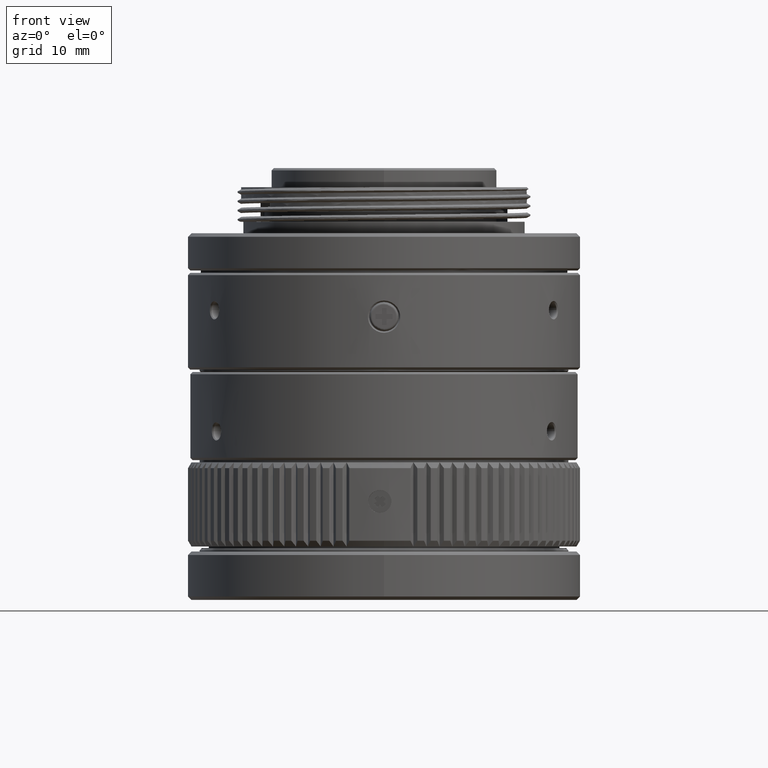
[diagram: clean part render]
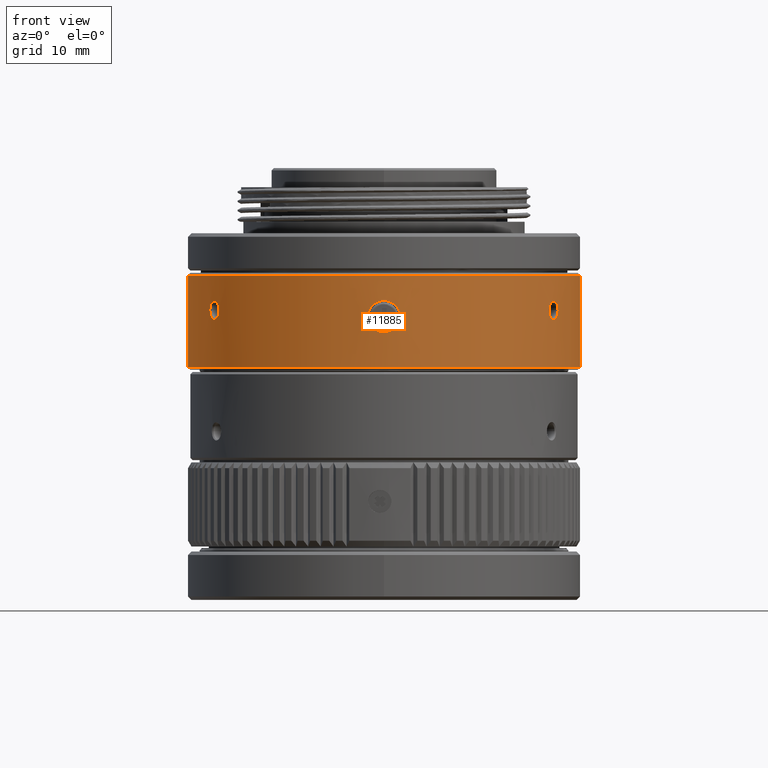
[diagram: same view with one face highlighted and labeled with its STEP entity id]
A machine part, front view. The second image highlights one B-rep face of the part: STEP entity #11885.
In plain terms, the highlighted cylindrical surface (partial cylindrical patch) has radius 17 mm, axis along (0, 0, -1).
Its self-contained STEP definition (entity closure, byte-faithful):
#880 = CARTESIAN_POINT ( 'NONE',  ( 14.51621374808549092, -8.848107386211344405, 10.96505596530195881 ) ) ;
#1080 = VERTEX_POINT ( 'NONE', #9643 ) ;
#1105 = CARTESIAN_POINT ( 'NONE',  ( 14.82840658759275243, -8.316446392439216240, 10.86434817954391185 ) ) ;
#1383 = CARTESIAN_POINT ( 'NONE',  ( 1.399178897064686122, -16.94233239355555654, 10.92038412918360812 ) ) ;
#1978 = CARTESIAN_POINT ( 'NONE',  ( 15.03386306122994398, -7.936537118587737361, 11.17265909807902169 ) ) ;
#2039 = CARTESIAN_POINT ( 'NONE',  ( -2.985602292109726980E-08, -16.99994755826685733, 9.703853647849248532 ) ) ;
#2588 = CARTESIAN_POINT ( 'NONE',  ( -14.35144953760494957, -9.113619036781518190, 12.08340685769254641 ) ) ;
#3199 = CARTESIAN_POINT ( 'NONE',  ( -0.7085538520041599897, -16.98608169885476826, 12.32766706338686902 ) ) ;
#4289 = CARTESIAN_POINT ( 'NONE',  ( 0.000000000000000000, 0.000000000000000000, 14.70393226270520337 ) ) ;
#4891 = EDGE_LOOP ( 'NONE', ( #22074, #52905, #57554, #24722 ) ) ;
#5215 = EDGE_CURVE ( 'NONE', #21514, #22298, #41972, .T. ) ;
#5390 = DIRECTION ( 'NONE',  ( 0.000000000000000000, 0.000000000000000000, -1.000000000000000000 ) ) ;
#5783 = CARTESIAN_POINT ( 'NONE',  ( 1.265543007806325893, -16.95286588059241240, 10.48294825757988846 ) ) ;
#6085 = CARTESIAN_POINT ( 'NONE',  ( 15.10826764495986829, -7.793603067350082014, 11.76943596855901575 ) ) ;
#6121 = CARTESIAN_POINT ( 'NONE',  ( -14.35837934221860479, -9.101570176239681231, 11.26110688693533035 ) ) ;
#6378 = CARTESIAN_POINT ( 'NONE',  ( 14.92079264591444243, -8.147356179501395346, 12.36354056009664504 ) ) ;
#6672 = CARTESIAN_POINT ( 'NONE',  ( 15.10832020023952893, -7.793501185615105520, 11.56014699603338514 ) ) ;
#7099 = CARTESIAN_POINT ( 'NONE',  ( -15.09874136544532419, -7.812147376076299388, 11.87354466904351646 ) ) ;
#7538 = AXIS2_PLACEMENT_3D ( 'NONE', #23871, #17126, #12153 ) ;
#7717 = VERTEX_POINT ( 'NONE', #18304 ) ;
#8227 = AXIS2_PLACEMENT_3D ( 'NONE', #4289, #49343, #40026 ) ;
#8551 = CARTESIAN_POINT ( 'NONE',  ( 0.000000000000000000, 0.000000000000000000, 14.70393226270520337 ) ) ;
#9643 = CARTESIAN_POINT ( 'NONE',  ( -14.72238429965113227, -8.499972608528263862, 10.86418566821859955 ) ) ;
#9817 = B_SPLINE_CURVE_WITH_KNOTS ( 'NONE', 3,
 ( #33338, #24843, #42714, #10797, #50876, #2588, #29521, #20451, #47377, #6121, #55280, #25147, #16365, #34222 ),
 .UNSPECIFIED., .F., .F.,
 ( 4, 2, 2, 2, 2, 2, 4 ),
 ( 0.000000000000000000, 0.0003135642817094142680, 0.0006271285634188285361, 0.001254257126837655121, 0.001567821408547065811, 0.001881385690256476284, 0.002508514253675294629 ),
 .UNSPECIFIED. ) ;
#9957 = LINE ( 'NONE', #13786, #10595 ) ;
#10035 = EDGE_CURVE ( 'NONE', #47037, #7717, #9957, .T. ) ;
#10162 = CARTESIAN_POINT ( 'NONE',  ( 1.408347226719864009, -16.94156303574113309, 11.01340453649803841 ) ) ;
#10463 = CARTESIAN_POINT ( 'NONE',  ( -2.985602292109726980E-08, -16.99994755826685733, 9.703853647849248532 ) ) ;
#10595 = VECTOR ( 'NONE', #40733, 1000.000000000000000 ) ;
#10797 = CARTESIAN_POINT ( 'NONE',  ( -14.51615069377965561, -8.848211691146303792, 12.36374247471212051 ) ) ;
#11041 = CARTESIAN_POINT ( 'NONE',  ( 0.1856004276468831982, -16.99999999886772173, 12.50402684633510653 ) ) ;
#11344 = CARTESIAN_POINT ( 'NONE',  ( 14.82656189220892529, -8.317603522321334708, 12.44375894365846413 ) ) ;
#11404 = CARTESIAN_POINT ( 'NONE',  ( -1.060707294260197830, -16.96700442510302054, 12.02936441035268977 ) ) ;
#11827 = ORIENTED_EDGE ( 'NONE', *, *, #39471, .T. ) ;
#11885 = ADVANCED_FACE ( 'NONE', ( #17629, #52170, #56847, #35210 ), #29657, .T. ) ;
#12074 = CARTESIAN_POINT ( 'NONE',  ( -14.92775995649002141, -8.135390214566076139, 12.37953695532055320 ) ) ;
#12153 = DIRECTION ( 'NONE',  ( -1.000000000000000000, -1.687538997430237941E-14, 0.000000000000000000 ) ) ;
#12562 = CARTESIAN_POINT ( 'NONE',  ( -1.229664216139479294, -16.95561670483952099, 10.39748983238265900 ) ) ;
#13596 = CARTESIAN_POINT ( 'NONE',  ( -16.99999999999599609, 0.000000000000000000, 14.70393226270520337 ) ) ;
#13617 = ORIENTED_EDGE ( 'NONE', *, *, #5215, .T. ) ;
#13786 = CARTESIAN_POINT ( 'NONE',  ( 16.99999999999599609, 2.081899558550010003E-15, 14.70393226270520337 ) ) ;
#14494 = VERTEX_POINT ( 'NONE', #40425 ) ;
#14570 = CARTESIAN_POINT ( 'NONE',  ( 14.72246460987873462, -8.500018860256878028, 10.86435854122186662 ) ) ;
#14637 = CARTESIAN_POINT ( 'NONE',  ( 14.31514168199074533, -9.169424653556243143, 11.45354860136587938 ) ) ;
#14725 = EDGE_CURVE ( 'NONE', #34709, #14494, #47327, .T. ) ;
#15505 = ORIENTED_EDGE ( 'NONE', *, *, #43349, .T. ) ;
#15744 = CARTESIAN_POINT ( 'NONE',  ( 14.72246457056893654, -8.500018928343235913, 12.46423798417808015 ) ) ;
#15809 = CARTESIAN_POINT ( 'NONE',  ( -1.408132967194616114, -16.94158084616390525, 10.91972049039001291 ) ) ;
#16101 = CARTESIAN_POINT ( 'NONE',  ( -1.265543007632765837, -16.95286588060546151, 11.72491626817959798 ) ) ;
#16365 = CARTESIAN_POINT ( 'NONE',  ( -14.61642271457223075, -8.683613228852138377, 10.86426143095794750 ) ) ;
#16967 = CARTESIAN_POINT ( 'NONE',  ( -1.370839372222483199, -16.94478714358641014, 10.73487241710262730 ) ) ;
#17126 = DIRECTION ( 'NONE',  ( -0.000000000000000000, -0.000000000000000000, 1.000000000000000000 ) ) ;
#17629 = FACE_OUTER_BOUND ( 'NONE', #4891, .T. ) ;
#18304 = CARTESIAN_POINT ( 'NONE',  ( 16.99999999999594635, -2.823240723882835743E-13, 6.703912849951186637 ) ) ;
#18448 = CARTESIAN_POINT ( 'NONE',  ( 14.50949683089594267, -8.859861264645553902, 12.37975796256185390 ) ) ;
#18736 = CARTESIAN_POINT ( 'NONE',  ( 14.30353011128735652, -9.187438509108256213, 11.76844952936577648 ) ) ;
#19028 = CARTESIAN_POINT ( 'NONE',  ( 14.72246460987873462, -8.500018860256878028, 10.86435854122186662 ) ) ;
#19242 = CARTESIAN_POINT ( 'NONE',  ( 0.3676499220204487717, -16.99687777682275325, 12.46773801614311417 ) ) ;
#19911 = CARTESIAN_POINT ( 'NONE',  ( -0.1856004264069983645, -16.99999999888250102, 9.703837678886163332 ) ) ;
#20451 = CARTESIAN_POINT ( 'NONE',  ( -14.30352685739824992, -9.187443574997113060, 11.56031056816237879 ) ) ;
#20478 = CARTESIAN_POINT ( 'NONE',  ( -1.363048492474576934, -16.94527743434368361, 11.46763670426897619 ) ) ;
#21514 = VERTEX_POINT ( 'NONE', #32844 ) ;
#21641 = B_SPLINE_CURVE_WITH_KNOTS ( 'NONE', 3,
 ( #19028, #23124, #41011, #880, #28109, #23412, #54716, #14637, #45958, #18736, #23997, #31923, #36604, #18448, #36888, #32493 ),
 .UNSPECIFIED., .F., .F.,
 ( 4, 2, 2, 2, 2, 2, 2, 4 ),
 ( 0.000000000000000000, 0.0003135034093271779707, 0.0006270068186543559415, 0.0009405102279815339122, 0.001254013637308711883, 0.001567517046635889854, 0.001881020455963067824, 0.002508027274617428103 ),
 .UNSPECIFIED. ) ;
#22015 = ORIENTED_EDGE ( 'NONE', *, *, #29289, .T. ) ;
#22074 = ORIENTED_EDGE ( 'NONE', *, *, #10035, .F. ) ;
#22298 = VERTEX_POINT ( 'NONE', #39923 ) ;
#23124 = CARTESIAN_POINT ( 'NONE',  ( 14.66942719431654574, -8.591806782053842184, 10.86430564190312076 ) ) ;
#23165 = CIRCLE ( 'NONE', #8227, 16.99999999999599609 ) ;
#23412 = CARTESIAN_POINT ( 'NONE',  ( 14.39078591957969344, -9.050459120216345354, 11.17153167602800146 ) ) ;
#23630 = CARTESIAN_POINT ( 'NONE',  ( 1.221299206010745264, -16.95615088402611903, 10.40087105398008305 ) ) ;
#23871 = CARTESIAN_POINT ( 'NONE',  ( 0.000000000000000000, 0.000000000000000000, 6.703912849951186637 ) ) ;
#23920 = CARTESIAN_POINT ( 'NONE',  ( 1.229664216358135276, -16.95561670482331351, 11.81037469261317518 ) ) ;
#23997 = CARTESIAN_POINT ( 'NONE',  ( 14.31490395662457260, -9.169796332985969300, 11.87368237571771168 ) ) ;
#24070 = AXIS2_PLACEMENT_3D ( 'NONE', #8551, #25283, #26415 ) ;
#24222 = CARTESIAN_POINT ( 'NONE',  ( 0.8634299149369871751, -16.97857017786259348, 9.982603446378567114 ) ) ;
#24722 = ORIENTED_EDGE ( 'NONE', *, *, #37507, .T. ) ;
#24843 = CARTESIAN_POINT ( 'NONE',  ( -14.66941825213009665, -8.591822268124044371, 12.46425342354289434 ) ) ;
#24961 = CARTESIAN_POINT ( 'NONE',  ( -14.82844322940361614, -8.316382927843104511, 12.46434757356022338 ) ) ;
#25147 = CARTESIAN_POINT ( 'NONE',  ( -14.50930990755399108, -8.860163784658995567, 10.94909311645520766 ) ) ;
#25175 = CARTESIAN_POINT ( 'NONE',  ( -1.221299205793028086, -16.95615088404197834, 11.80699347180068415 ) ) ;
#25267 = CARTESIAN_POINT ( 'NONE',  ( -14.82654938893746355, -8.317626512384761028, 10.88500640138490816 ) ) ;
#25283 = DIRECTION ( 'NONE',  ( 0.000000000000000000, 0.000000000000000000, -1.000000000000000000 ) ) ;
#25471 = CARTESIAN_POINT ( 'NONE',  ( -0.8567303808642381391, -16.97857096225743234, 9.989038464325149747 ) ) ;
#26415 = DIRECTION ( 'NONE',  ( -1.000000000000000000, 0.000000000000000000, 0.000000000000000000 ) ) ;
#26517 = VERTEX_POINT ( 'NONE', #44347 ) ;
#26876 = EDGE_LOOP ( 'NONE', ( #22015, #13617 ) ) ;
#28031 = CARTESIAN_POINT ( 'NONE',  ( 0.7085538528130058689, -16.98608169881983088, 9.880197462489448412 ) ) ;
#28109 = CARTESIAN_POINT ( 'NONE',  ( 14.46941112449167122, -8.924218250374483574, 11.02408992962756074 ) ) ;
#28333 = CARTESIAN_POINT ( 'NONE',  ( 14.92761334463509471, -8.135662219366009751, 10.94883856283862933 ) ) ;
#28612 = CARTESIAN_POINT ( 'NONE',  ( 1.124338380312182029, -16.96327931996798455, 11.96641127105179514 ) ) ;
#28903 = CARTESIAN_POINT ( 'NONE',  ( 3.121015076212082686E-08, -16.99994755826754300, 12.50401087755376217 ) ) ;
#29289 = EDGE_CURVE ( 'NONE', #22298, #21514, #21641, .T. ) ;
#29521 = CARTESIAN_POINT ( 'NONE',  ( -14.30363198767360089, -9.187279900921877740, 11.87415756025411007 ) ) ;
#29657 = CYLINDRICAL_SURFACE ( 'NONE', #24070, 16.99999999999599609 ) ;
#29743 = ORIENTED_EDGE ( 'NONE', *, *, #14725, .T. ) ;
#30137 = CARTESIAN_POINT ( 'NONE',  ( -1.124338379966471901, -16.96327931999196537, 10.24145325388198557 ) ) ;
#30420 = CARTESIAN_POINT ( 'NONE',  ( 3.121015076212082686E-08, -16.99994755826754300, 12.50401087755376217 ) ) ;
#30894 = CIRCLE ( 'NONE', #7538, 16.99999999999599609 ) ;
#30958 = EDGE_CURVE ( 'NONE', #33263, #42647, #50144, .T. ) ;
#31022 = CARTESIAN_POINT ( 'NONE',  ( 3.121015076212082686E-08, -16.99994755826754300, 12.50401087755376217 ) ) ;
#31923 = CARTESIAN_POINT ( 'NONE',  ( 14.35843029993414710, -9.101489954823977158, 12.06769954441739223 ) ) ;
#32493 = CARTESIAN_POINT ( 'NONE',  ( 14.72246457056893654, -8.500018928343235913, 12.46423798417808015 ) ) ;
#32844 = CARTESIAN_POINT ( 'NONE',  ( 14.72246457056893654, -8.500018928343235913, 12.46423798417808015 ) ) ;
#33263 = VERTEX_POINT ( 'NONE', #34917 ) ;
#33295 = CARTESIAN_POINT ( 'NONE',  ( 0.6230535837865762705, -16.98879216978009765, 12.36279840846149725 ) ) ;
#33338 = CARTESIAN_POINT ( 'NONE',  ( -14.72239618243831138, -8.499979418937583020, 12.46441230724838789 ) ) ;
#33364 = CARTESIAN_POINT ( 'NONE',  ( -0.6230535829236981682, -16.98879216981215023, 9.845066116511969057 ) ) ;
#33590 = CARTESIAN_POINT ( 'NONE',  ( 0.7038052556084725131, -16.98559734092601303, 12.31994954583660906 ) ) ;
#33958 = CARTESIAN_POINT ( 'NONE',  ( -0.3680192963590813160, -16.99686976589707399, 12.46756987799630956 ) ) ;
#34222 = CARTESIAN_POINT ( 'NONE',  ( -14.72238429965113227, -8.499972608528263862, 10.86418566821859955 ) ) ;
#34334 = CARTESIAN_POINT ( 'NONE',  ( -14.77544311285734935, -8.408181824810549543, 10.86432246356522313 ) ) ;
#34442 = ORIENTED_EDGE ( 'NONE', *, *, #49430, .T. ) ;
#34539 = CARTESIAN_POINT ( 'NONE',  ( -0.1855439407897616355, -17.00000000071350215, 12.50419449762411794 ) ) ;
#34709 = VERTEX_POINT ( 'NONE', #31022 ) ;
#34917 = CARTESIAN_POINT ( 'NONE',  ( -17.00000074961971208, 4.033187019905959687E-14, 14.70393226270520337 ) ) ;
#35191 = CARTESIAN_POINT ( 'NONE',  ( -15.10823292377818916, -7.793670376530664079, 11.45441692918948107 ) ) ;
#35210 = FACE_BOUND ( 'NONE', #41484, .T. ) ;
#36604 = CARTESIAN_POINT ( 'NONE',  ( 14.39017429338948162, -9.051438768748694130, 12.15593742732288796 ) ) ;
#36888 = CARTESIAN_POINT ( 'NONE',  ( 14.61645713886018960, -8.683553606280236536, 12.46424834586022001 ) ) ;
#37108 = CARTESIAN_POINT ( 'NONE',  ( 0.3680192974100546799, -16.99686976587312159, 9.740294647692813612 ) ) ;
#37119 = CARTESIAN_POINT ( 'NONE',  ( 15.06133666313324504, -7.884020420799740414, 11.26089698098278014 ) ) ;
#37507 = EDGE_CURVE ( 'NONE', #42647, #7717, #30894, .T. ) ;
#37708 = CARTESIAN_POINT ( 'NONE',  ( 1.363048492525778421, -16.94527743433952338, 10.74022782133256193 ) ) ;
#37713 = CARTESIAN_POINT ( 'NONE',  ( 15.06124903568369255, -7.884187170395614785, 12.06787382558699839 ) ) ;
#37779 = CARTESIAN_POINT ( 'NONE',  ( -0.3676499209321580364, -16.99687777684781409, 9.740126508955258444 ) ) ;
#38365 = CARTESIAN_POINT ( 'NONE',  ( -1.408347226720656709, -16.94156303574107270, 11.19445998895066197 ) ) ;
#38742 = CARTESIAN_POINT ( 'NONE',  ( -14.72238429965113227, -8.499972608528263862, 10.86418566821859955 ) ) ;
#38935 = CARTESIAN_POINT ( 'NONE',  ( -1.399178897052616000, -16.94233239355659393, 11.28748039633061495 ) ) ;
#39313 = CARTESIAN_POINT ( 'NONE',  ( -15.06137972286858151, -7.883937993776261699, 12.06749773970967254 ) ) ;
#39471 = EDGE_CURVE ( 'NONE', #14494, #34709, #48706, .T. ) ;
#39923 = CARTESIAN_POINT ( 'NONE',  ( 14.72246460987873462, -8.500018860256878028, 10.86435854122186662 ) ) ;
#40026 = DIRECTION ( 'NONE',  ( -1.000000000000000000, 0.000000000000000000, 0.000000000000000000 ) ) ;
#40425 = CARTESIAN_POINT ( 'NONE',  ( -2.985602292109726980E-08, -16.99994755826685733, 9.703853647849248532 ) ) ;
#40733 = DIRECTION ( 'NONE',  ( 0.000000000000000000, 0.000000000000000000, -1.000000000000000000 ) ) ;
#41011 = CARTESIAN_POINT ( 'NONE',  ( 14.61653689504254672, -8.681377488273046339, 10.88483758174238147 ) ) ;
#41235 = CARTESIAN_POINT ( 'NONE',  ( 14.96330527598627391, -8.068768486424794162, 12.30450659576841055 ) ) ;
#41484 = EDGE_LOOP ( 'NONE', ( #15505, #34442 ) ) ;
#41514 = CARTESIAN_POINT ( 'NONE',  ( 1.408132967196210839, -16.94158084616377380, 11.28814403487872298 ) ) ;
#41805 = CARTESIAN_POINT ( 'NONE',  ( 1.119081460151147400, -16.96320374333835090, 10.24912414329170396 ) ) ;
#41972 = B_SPLINE_CURVE_WITH_KNOTS ( 'NONE', 3,
 ( #15744, #51413, #11344, #6378, #41235, #45593, #37713, #46771, #6085, #6672, #55532, #37119, #1978, #28333, #1105, #14570 ),
 .UNSPECIFIED., .F., .F.,
 ( 4, 2, 2, 2, 2, 2, 2, 4 ),
 ( 0.000000000000000000, 0.0003135034093275342396, 0.0006270068186550684791, 0.0009405102279826027187, 0.001254013637310136958, 0.001567517046637671198, 0.001881020455965205437, 0.002508027274620277386 ),
 .UNSPECIFIED. ) ;
#42647 = VERTEX_POINT ( 'NONE', #51720 ) ;
#42714 = CARTESIAN_POINT ( 'NONE',  ( -14.61655477457809660, -8.681348260357724556, 12.44356667937398697 ) ) ;
#43031 = CARTESIAN_POINT ( 'NONE',  ( -0.8634299142782146941, -16.97857017789746337, 12.22526107955096286 ) ) ;
#43349 = EDGE_CURVE ( 'NONE', #1080, #26517, #44096, .T. ) ;
#43573 = VECTOR ( 'NONE', #5390, 1000.000000000000000 ) ;
#44096 = B_SPLINE_CURVE_WITH_KNOTS ( 'NONE', 3,
 ( #38742, #34334, #25267, #48341, #47784, #52152, #35191, #53019, #7099, #39313, #48063, #12074, #24961, #56261 ),
 .UNSPECIFIED., .F., .F.,
 ( 4, 2, 2, 2, 2, 2, 4 ),
 ( 3.878959614448864246E-18, 0.0003135517002349700179, 0.0006271034004699361326, 0.001254206800939871615, 0.001567758501174841904, 0.001881310201409812193, 0.002508413601879754939 ),
 .UNSPECIFIED. ) ;
#44347 = CARTESIAN_POINT ( 'NONE',  ( -14.72239618243831138, -8.499979418937583020, 12.46441230724838789 ) ) ;
#45593 = CARTESIAN_POINT ( 'NONE',  ( 15.03332047380918368, -7.937556626672347626, 12.15706484936951526 ) ) ;
#45882 = CARTESIAN_POINT ( 'NONE',  ( 1.370839372271890344, -16.94478714358206872, 11.47299210806115966 ) ) ;
#45958 = CARTESIAN_POINT ( 'NONE',  ( 14.30359206581768028, -9.187342054034285610, 11.55916055684032706 ) ) ;
#46468 = CARTESIAN_POINT ( 'NONE',  ( 1.060707294657155408, -16.96700442507786732, 10.17850011550517308 ) ) ;
#46771 = CARTESIAN_POINT ( 'NONE',  ( 15.09852552906248668, -7.812564028599202182, 11.87504792403307974 ) ) ;
#47010 = EDGE_CURVE ( 'NONE', #47037, #33263, #23165, .T. ) ;
#47037 = VERTEX_POINT ( 'NONE', #57832 ) ;
#47327 = B_SPLINE_CURVE_WITH_KNOTS ( 'NONE', 3,
 ( #28903, #11041, #19242, #33295, #33590, #51407, #50537, #28612, #23920, #45882, #41514, #10162, #1383, #37708, #51113, #5783, #23630, #41805, #46468, #24222, #28031, #37108, #54937, #10463 ),
 .UNSPECIFIED., .F., .F.,
 ( 4, 2, 2, 2, 2, 2, 2, 2, 2, 2, 2, 4 ),
 ( 0.000000000000000000, 0.0005488739881765476031, 0.0008233109822648223804, 0.001097747976353097158, 0.001646621964529642809, 0.002195495952706188244, 0.002469932946794459010, 0.002744369940882729342, 0.003018806934970999674, 0.003293243929059270006, 0.003842117917235813706, 0.004390991905412357406 ),
 .UNSPECIFIED. ) ;
#47377 = CARTESIAN_POINT ( 'NONE',  ( -14.31489349660145471, -9.169812494758167176, 11.45502846819334586 ) ) ;
#47784 = CARTESIAN_POINT ( 'NONE',  ( -14.96324874995370102, -8.068873758118964901, 11.02403018668273660 ) ) ;
#48063 = CARTESIAN_POINT ( 'NONE',  ( -15.03389372469722041, -7.936478267460255864, 12.15577407500512308 ) ) ;
#48341 = CARTESIAN_POINT ( 'NONE',  ( -14.92083794160301657, -8.147273943016008602, 10.96487211849598431 ) ) ;
#48706 = B_SPLINE_CURVE_WITH_KNOTS ( 'NONE', 3,
 ( #2039, #19911, #37779, #33364, #51185, #25471, #51474, #30137, #12562, #16967, #15809, #38365, #38935, #20478, #56174, #16101, #25175, #52659, #11404, #43031, #3199, #33958, #34539, #30420 ),
 .UNSPECIFIED., .F., .F.,
 ( 4, 2, 2, 2, 2, 2, 2, 2, 2, 2, 2, 4 ),
 ( 0.000000000000000000, 0.0005488739885142061067, 0.0008233109827713078590, 0.001097747977028409611, 0.001646621965542613766, 0.002195495954056817921, 0.002469932948313920216, 0.002744369942571022077, 0.003018806936828123937, 0.003293243931085225798, 0.003842117919599427351, 0.004390991908113628037 ),
 .UNSPECIFIED. ) ;
#49343 = DIRECTION ( 'NONE',  ( 0.000000000000000000, 0.000000000000000000, -1.000000000000000000 ) ) ;
#49430 = EDGE_CURVE ( 'NONE', #26517, #1080, #9817, .T. ) ;
#50144 = LINE ( 'NONE', #13596, #43573 ) ;
#50537 = CARTESIAN_POINT ( 'NONE',  ( 0.9292000049452953103, -16.97471156959321803, 12.15982168265451691 ) ) ;
#50876 = CARTESIAN_POINT ( 'NONE',  ( -14.46948533177217300, -8.924098451834220569, 12.30458056194679628 ) ) ;
#51113 = CARTESIAN_POINT ( 'NONE',  ( 1.336346603575817138, -16.94743161735940262, 10.65273423557278143 ) ) ;
#51185 = CARTESIAN_POINT ( 'NONE',  ( -0.7038052548223124871, -16.98559734095894314, 9.887914979110339786 ) ) ;
#51407 = CARTESIAN_POINT ( 'NONE',  ( 0.8567303814919740024, -16.97857096222540108, 12.21882606059495657 ) ) ;
#51413 = CARTESIAN_POINT ( 'NONE',  ( 14.77543653482475605, -8.408193218216734266, 12.46429088349846559 ) ) ;
#51474 = CARTESIAN_POINT ( 'NONE',  ( -0.9292000043933427156, -16.97471156962371452, 10.04804284226162281 ) ) ;
#51720 = CARTESIAN_POINT ( 'NONE',  ( -16.99999999999604938, -2.802421728297335564E-13, 6.703912849951186637 ) ) ;
#52152 = CARTESIAN_POINT ( 'NONE',  ( -15.06834079265756543, -7.871928179712293527, 11.24516517881871991 ) ) ;
#52170 = FACE_BOUND ( 'NONE', #57161, .T. ) ;
#52659 = CARTESIAN_POINT ( 'NONE',  ( -1.119081459822252933, -16.96320374336022851, 11.95874038253933058 ) ) ;
#52905 = ORIENTED_EDGE ( 'NONE', *, *, #47010, .T. ) ;
#53019 = CARTESIAN_POINT ( 'NONE',  ( -15.10832332730383243, -7.793495123616331455, 11.76828243176772482 ) ) ;
#54716 = CARTESIAN_POINT ( 'NONE',  ( 14.35853089559578244, -9.101330692428179603, 11.26072269981105656 ) ) ;
#54937 = CARTESIAN_POINT ( 'NONE',  ( 0.1855439420311120191, -17.00000000069872286, 9.703670027958548161 ) ) ;
#55280 = CARTESIAN_POINT ( 'NONE',  ( -14.39015354705040828, -9.051470872919887611, 11.17280735759176302 ) ) ;
#55532 = CARTESIAN_POINT ( 'NONE',  ( 15.09872855020830507, -7.812172312676765706, 11.45491414968218535 ) ) ;
#56174 = CARTESIAN_POINT ( 'NONE',  ( -1.336346603494709351, -16.94743161736589343, 11.55513029007850001 ) ) ;
#56261 = CARTESIAN_POINT ( 'NONE',  ( -14.72239618243831138, -8.499979418937583020, 12.46441230724838789 ) ) ;
#56847 = FACE_BOUND ( 'NONE', #26876, .T. ) ;
#57161 = EDGE_LOOP ( 'NONE', ( #29743, #11827 ) ) ;
#57554 = ORIENTED_EDGE ( 'NONE', *, *, #30958, .T. ) ;
#57832 = CARTESIAN_POINT ( 'NONE',  ( 17.00000074961992524, 4.241376984941205305E-14, 14.70393226270520337 ) ) ;